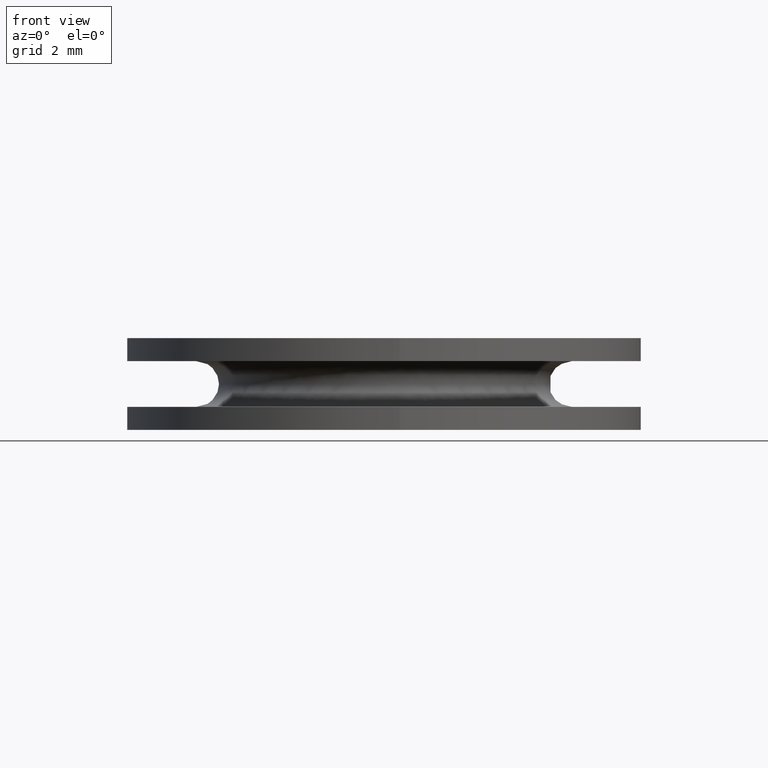
[diagram: clean part render]
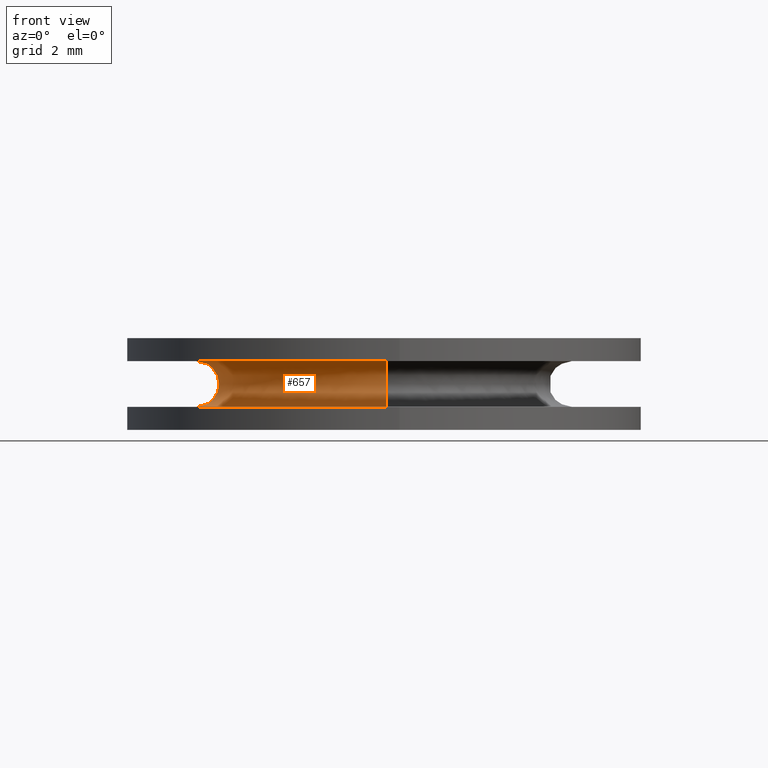
[diagram: same view with one face highlighted and labeled with its STEP entity id]
A machine part, front view. The second image highlights one B-rep face of the part: STEP entity #657.
In plain terms, the highlighted face is a freeform B-spline surface patch.
Its self-contained STEP definition (entity closure, byte-faithful):
#459=CARTESIAN_POINT('',(-0.285905274870642,4.090019805897416,1.499999999999586));
#460=VERTEX_POINT('',#459);
#478=CARTESIAN_POINT('',(0.051518775183676,-4.099674805015911,1.499999999995414));
#479=VERTEX_POINT('',#478);
#493=CARTESIAN_POINT('',(0.051520763523961,-4.099676281233791,0.500000000000000));
#494=VERTEX_POINT('',#493);
#495=CARTESIAN_POINT('',(0.051520763523961,-4.099676281233791,0.500000000000000));
#496=CARTESIAN_POINT('',(0.045237743580853,-3.599715759135555,0.500000000003654));
#497=CARTESIAN_POINT('',(0.045236758842057,-3.599715771509885,0.999999999998834));
#498=CARTESIAN_POINT('',(0.045235774106219,-3.599715783884178,1.499998498911208));
#499=CARTESIAN_POINT('',(0.051518775183676,-4.099674805015912,1.499999999995415));
#507=(BOUNDED_CURVE()B_SPLINE_CURVE(2,(#495,#496,#497,#498,#499),.UNSPECIFIED.,.F.,.U.)B_SPLINE_CURVE_WITH_KNOTS((3,2,3),(-3.781082537398954,-2.0,-0.218921109620307),.UNSPECIFIED.)CURVE()GEOMETRIC_REPRESENTATION_ITEM()RATIONAL_B_SPLINE_CURVE((0.930396133920977,0.682054299131593,1.0,0.682054950170537,0.930395116893050))REPRESENTATION_ITEM(''));
#508=EDGE_CURVE('',#494,#479,#507,.T.);
#525=CARTESIAN_POINT('',(-0.285905300905714,4.090020177473202,0.500000000001413));
#526=VERTEX_POINT('',#525);
#542=CARTESIAN_POINT('',(-0.285905300905714,4.090020177473202,0.500000000001413));
#543=CARTESIAN_POINT('',(-0.251038616497653,3.591236501962538,0.499999159363168));
#544=CARTESIAN_POINT('',(-0.251038616467476,3.591236501964684,1.000000000000256));
#545=CARTESIAN_POINT('',(-0.251038616437299,3.591236501966830,1.500000468150025));
#546=CARTESIAN_POINT('',(-0.285905274870642,4.090019805897416,1.499999999999586));
#554=(BOUNDED_CURVE()B_SPLINE_CURVE(2,(#542,#543,#544,#545,#546),.UNSPECIFIED.,.F.,.U.)B_SPLINE_CURVE_WITH_KNOTS((3,2,3),(-3.781084579811299,-2.0,-0.218916325179411),.UNSPECIFIED.)CURVE()GEOMETRIC_REPRESENTATION_ITEM()RATIONAL_B_SPLINE_CURVE((0.909468174693766,0.666711677463322,0.977505800795127,0.666711835381591,0.909467927998859))REPRESENTATION_ITEM(''));
#555=EDGE_CURVE('',#526,#460,#554,.T.);
#560=CARTESIAN_POINT('',(0.052412603386655,-4.170642906939517,0.505062688153478));
#561=CARTESIAN_POINT('',(-4.118230303552861,-4.223055510326171,0.505062688153478));
#562=CARTESIAN_POINT('',(-4.170642906939517,-0.052412603386655,0.505062688153478));
#563=CARTESIAN_POINT('',(-4.220138929241859,3.886148372379451,0.505062688153478));
#564=CARTESIAN_POINT('',(-0.290855455785034,4.160818722563958,0.505062688153478));
#565=CARTESIAN_POINT('',(0.045237743580070,-3.599715759133736,0.423187325236650));
#566=CARTESIAN_POINT('',(-3.554478015553665,-3.644953502713806,0.423187325236650));
#567=CARTESIAN_POINT('',(-3.599715759133736,-0.045237743580070,0.423187325236650));
#568=CARTESIAN_POINT('',(-3.642436177896925,3.354166216222907,0.423187325236650));
#569=CARTESIAN_POINT('',(-0.251039705671593,3.591236425825555,0.423187325236650));
#570=CARTESIAN_POINT('',(0.045237743580070,-3.599715759133737,1.000000000000000));
#571=CARTESIAN_POINT('',(-3.554478015553666,-3.644953502713807,1.000000000000000));
#572=CARTESIAN_POINT('',(-3.599715759133737,-0.045237743580070,1.000000000000000));
#573=CARTESIAN_POINT('',(-3.642436177896926,3.354166216222908,1.000000000000000));
#574=CARTESIAN_POINT('',(-0.251039705671593,3.591236425825556,1.000000000000000));
#575=CARTESIAN_POINT('',(0.045237743580070,-3.599715759133738,1.576812168740092));
#576=CARTESIAN_POINT('',(-3.554478015553665,-3.644953502713808,1.576812168740093));
#577=CARTESIAN_POINT('',(-3.599715759133738,-0.045237743580070,1.576812168740092));
#578=CARTESIAN_POINT('',(-3.642436177896926,3.354166216222908,1.576812168740093));
#579=CARTESIAN_POINT('',(-0.251039705671593,3.591236425825556,1.576812168740094));
#580=CARTESIAN_POINT('',(0.052412597985772,-4.170642477173550,1.494937373478092));
#581=CARTESIAN_POINT('',(-4.118229879187777,-4.223055075159320,1.494937373478091));
#582=CARTESIAN_POINT('',(-4.170642477173550,-0.052412597985773,1.494937373478092));
#583=CARTESIAN_POINT('',(-4.220138494375550,3.886147971929364,1.494937373478091));
#584=CARTESIAN_POINT('',(-0.290855425813689,4.160818293810328,1.494937373478091));
#592=(BOUNDED_SURFACE()B_SPLINE_SURFACE(2,2,((#560,#565,#570,#575,#580),(#561,#566,#571,#576,#581),(#562,#567,#572,#577,#582),(#563,#568,#573,#578,#583),(#564,#569,#574,#579,#584)),.UNSPECIFIED.,.F.,.F.,.U.)B_SPLINE_SURFACE_WITH_KNOTS((3,2,3),(3,2,3),(0.0,6.910693062750945,13.544958402991851),(0.0,0.913128923017008,1.826257325108354),.UNSPECIFIED.)GEOMETRIC_REPRESENTATION_ITEM()RATIONAL_B_SPLINE_SURFACE(((0.985667121901626,0.650291140866945,1.0,0.650291340370339,0.985666739248424),(0.696971905889267,0.459825275452553,0.707106781186548,0.459825416522756,0.696971635312593),(0.985667121901626,0.650291140866945,1.0,0.650291340370339,0.985666739248424),(0.708519714529762,0.467443910069129,0.718822509939086,0.467444053476659,0.708519439470026),(0.963495329311877,0.635663362403120,0.977505800795127,0.635663557418844,0.963494955266152)))REPRESENTATION_ITEM('')SURFACE());
#593=CARTESIAN_POINT('',(-4.100000026179941,0.0,1.500000000000000));
#594=VERTEX_POINT('',#593);
#595=CARTESIAN_POINT('',(-4.100000026179941,0.0,1.500000000000000));
#596=CARTESIAN_POINT('',(-4.100000026179941,3.823402118921490,1.499999999999999));
#597=CARTESIAN_POINT('',(-0.285905274870642,4.090019805897416,1.499999999999586));
#605=(BOUNDED_CURVE()B_SPLINE_CURVE(2,(#595,#596,#597),.UNSPECIFIED.,.F.,.U.)B_SPLINE_CURVE_WITH_KNOTS((3,3),(0.0,0.237833732336683),.UNSPECIFIED.)CURVE()GEOMETRIC_REPRESENTATION_ITEM()RATIONAL_B_SPLINE_CURVE((1.0,0.721360450373968,0.972879973261308))REPRESENTATION_ITEM(''));
#606=EDGE_CURVE('',#594,#460,#605,.T.);
#607=ORIENTED_EDGE('',*,*,#606,.T.);
#608=ORIENTED_EDGE('',*,*,#555,.F.);
#609=CARTESIAN_POINT('',(-4.100000000000001,0.0,0.500000000000000));
#610=VERTEX_POINT('',#609);
#611=CARTESIAN_POINT('',(-4.100000000000001,0.0,0.500000000000000));
#612=CARTESIAN_POINT('',(-4.100000000000001,3.823402094451070,0.500000000000000));
#613=CARTESIAN_POINT('',(-0.285905300905714,4.090020177473202,0.500000000001413));
#621=(BOUNDED_CURVE()B_SPLINE_CURVE(2,(#611,#612,#613),.UNSPECIFIED.,.F.,.U.)B_SPLINE_CURVE_WITH_KNOTS((3,3),(0.0,0.237833732334141),.UNSPECIFIED.)CURVE()GEOMETRIC_REPRESENTATION_ITEM()RATIONAL_B_SPLINE_CURVE((1.0,0.721360450376946,0.972879973255931))REPRESENTATION_ITEM(''));
#622=EDGE_CURVE('',#610,#526,#621,.T.);
#623=ORIENTED_EDGE('',*,*,#622,.F.);
#624=CARTESIAN_POINT('',(0.051520763523961,-4.099676281233791,0.500000000000000));
#625=CARTESIAN_POINT('',(0.025761398768986,-4.100000000000002,0.500000000000000));
#626=CARTESIAN_POINT('',(0.0,-4.100000000000001,0.500000000000000));
#627=CARTESIAN_POINT('',(-4.100000000000001,-4.100000000000001,0.500000000000000));
#628=CARTESIAN_POINT('',(-4.100000000000001,0.0,0.500000000000000));
#636=(BOUNDED_CURVE()B_SPLINE_CURVE(2,(#624,#625,#626,#627,#628),.UNSPECIFIED.,.F.,.U.)B_SPLINE_CURVE_WITH_KNOTS((3,2,3),(0.747784295921536,0.750000000000000,1.0),.UNSPECIFIED.)CURVE()GEOMETRIC_REPRESENTATION_ITEM()RATIONAL_B_SPLINE_CURVE((0.994854295643570,0.997404141202083,1.0,0.707106781186547,1.0))REPRESENTATION_ITEM(''));
#637=EDGE_CURVE('',#494,#610,#636,.T.);
#638=ORIENTED_EDGE('',*,*,#637,.F.);
#639=ORIENTED_EDGE('',*,*,#508,.T.);
#640=CARTESIAN_POINT('',(0.051518775183677,-4.099674805015911,1.499999999995415));
#641=CARTESIAN_POINT('',(0.025760394945134,-4.099998503769982,1.499999999995429));
#642=CARTESIAN_POINT('',(-0.000000019071155,-4.099998508567538,1.499999999995443));
#643=CARTESIAN_POINT('',(-4.100000035655605,-4.099999272141340,1.499999999997736));
#644=CARTESIAN_POINT('',(-4.100000026179941,0.0,1.500000000000000));
#652=(BOUNDED_CURVE()B_SPLINE_CURVE(2,(#640,#641,#642,#643,#644),.UNSPECIFIED.,.F.,.U.)B_SPLINE_CURVE_WITH_KNOTS((3,2,3),(0.747784380407908,0.750000000000000,1.0),.UNSPECIFIED.)CURVE()GEOMETRIC_REPRESENTATION_ITEM()RATIONAL_B_SPLINE_CURVE((0.994854490098484,0.997404240184024,1.0,0.707106781186547,1.0))REPRESENTATION_ITEM(''));
#653=EDGE_CURVE('',#479,#594,#652,.T.);
#654=ORIENTED_EDGE('',*,*,#653,.T.);
#655=EDGE_LOOP('',(#607,#608,#623,#638,#639,#654));
#656=FACE_OUTER_BOUND('',#655,.T.);
#657=ADVANCED_FACE('',(#656),#592,.F.);